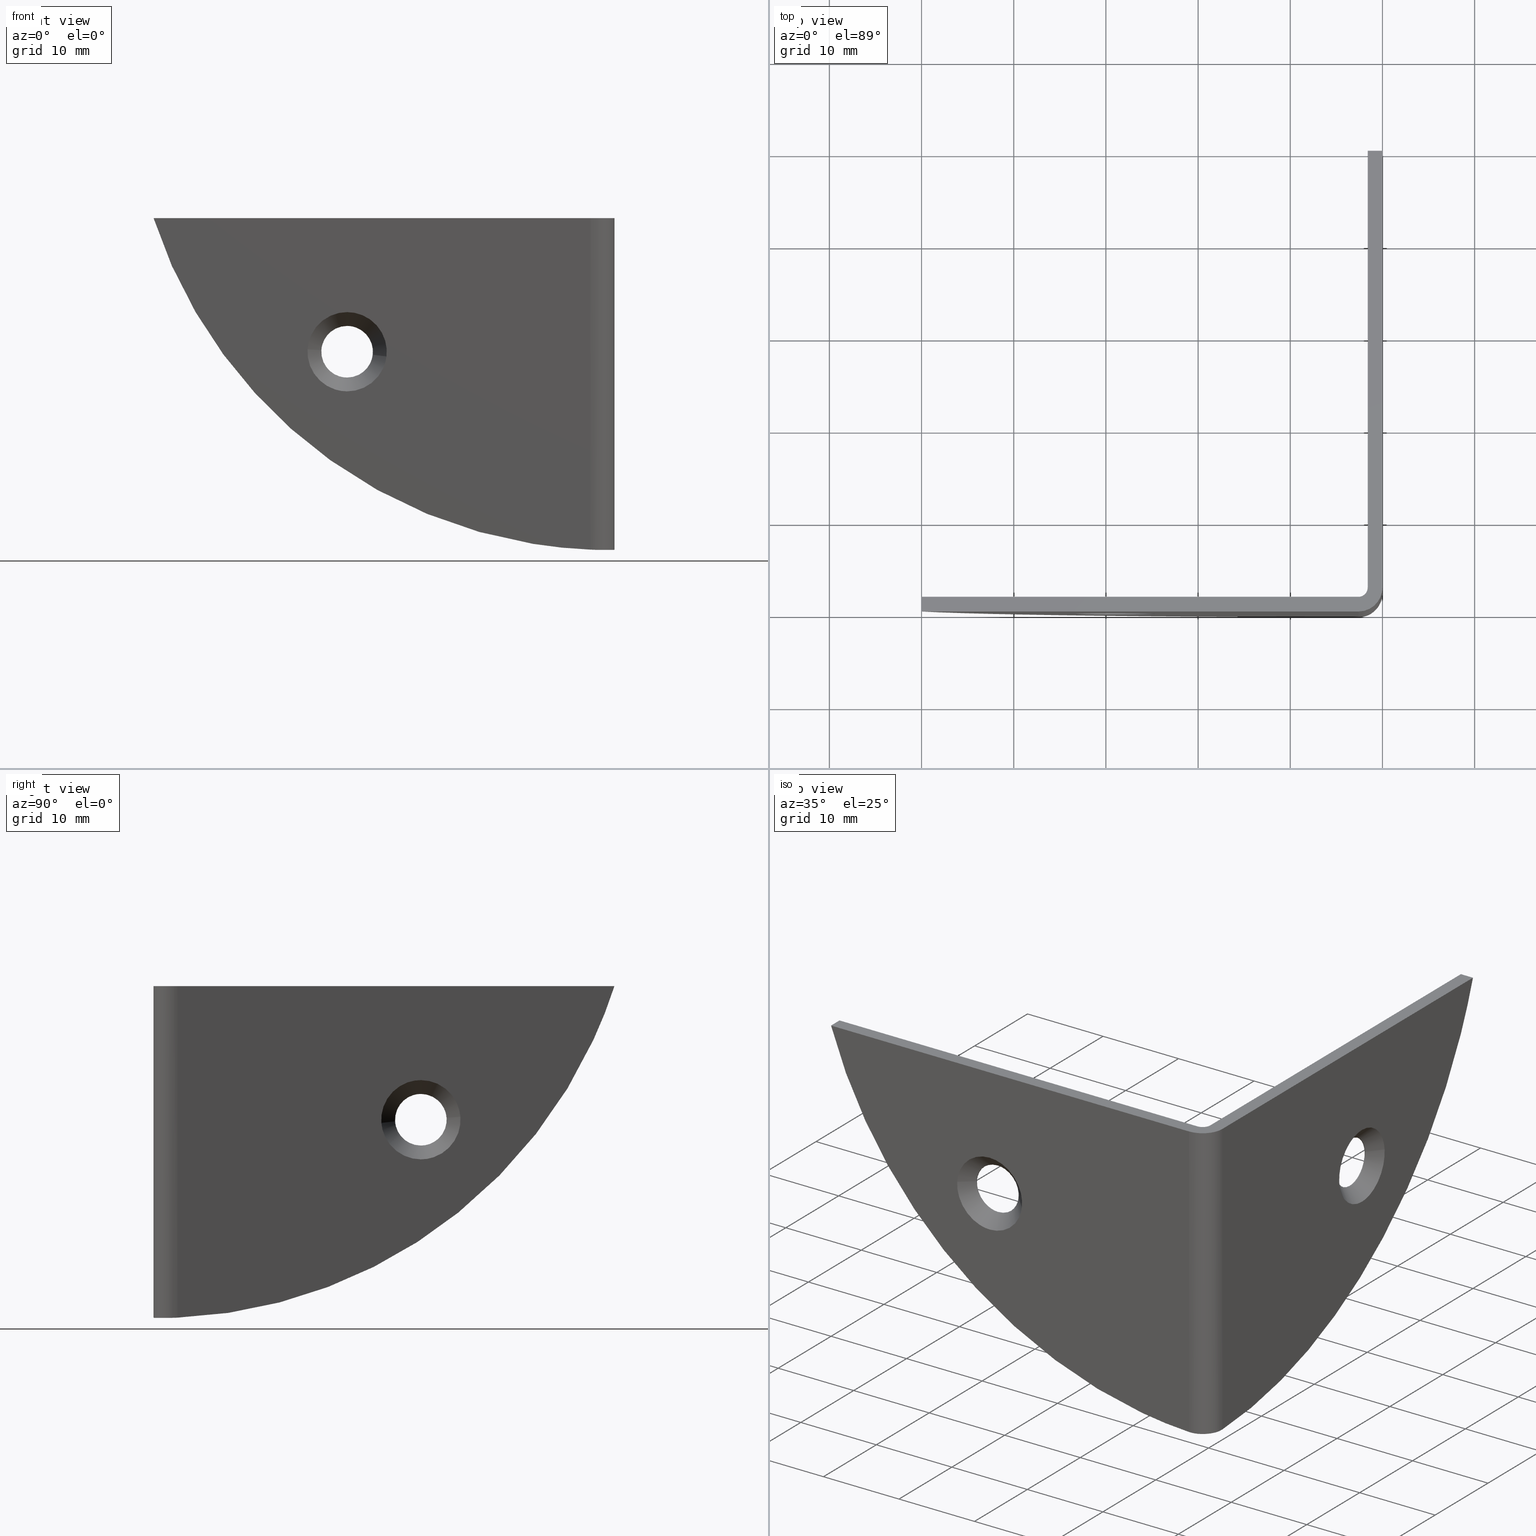
[diagram: canonical four-view strip — front | top / right | iso, engineering-drawing reading convention]
A machine part, canonical four-view strip (front | top / right | iso — engineering-drawing reading convention). The complete STEP part file that produces these views, byte-faithful:
ISO-10303-21;
HEADER;
/****************************************************************
 * Generated by software with PDE/Lib inside                    *
 * PDElib Version 4.4.1-0003, patched  Thursday August 19 11:58 *
 * International Technegroup Inc. (www.iti-oh.com)              *
 ****************************************************************/
FILE_DESCRIPTION((''),'2;1');
FILE_NAME('','2005-12-14T14:48:39',(''),(''),'','CADfix','');
FILE_SCHEMA(('AUTOMOTIVE_DESIGN'));
ENDSEC;
DATA;
#5=APPLICATION_CONTEXT('automotive design');
#6=APPLICATION_PROTOCOL_DEFINITION('Draft International Standard','automotive_design',1998,#5);
#7=PRODUCT_CONTEXT('None',#5,'mechanical');
#8=PRODUCT('angle','','None',(#7));
#9=PRODUCT_RELATED_PRODUCT_CATEGORY('part','description',(#8));
#10=PRODUCT_DEFINITION_FORMATION('None','None',#8);
#11=PRODUCT_DEFINITION_CONTEXT('part definition',#5,'design');
#12=PRODUCT_DEFINITION('None','None',#10,#11);
#18=(NAMED_UNIT(*)PLANE_ANGLE_UNIT()SI_UNIT($,.RADIAN.));
#19=DIMENSIONAL_EXPONENTS(0.0,0.0,0.0,0.0,0.0,0.0,0.0);
#20=PLANE_ANGLE_MEASURE_WITH_UNIT(PLANE_ANGLE_MEASURE(0.017453292500000),#18);
#24=(CONVERSION_BASED_UNIT('DEGREE',#20)NAMED_UNIT(#19)PLANE_ANGLE_UNIT());
#28=(NAMED_UNIT(*)SI_UNIT($,.STERADIAN.)SOLID_ANGLE_UNIT());
#32=(LENGTH_UNIT()NAMED_UNIT(*)SI_UNIT(.MILLI.,.METRE.));
#34=UNCERTAINTY_MEASURE_WITH_UNIT(LENGTH_MEASURE(0.001000000000000),#32,'DISTANCE_ACCURACY_VALUE','');
#36=(GEOMETRIC_REPRESENTATION_CONTEXT(3)GLOBAL_UNCERTAINTY_ASSIGNED_CONTEXT((#34))GLOBAL_UNIT_ASSIGNED_CONTEXT((#24,#28,#32))REPRESENTATION_CONTEXT('None','None'));
#37=AXIS2_PLACEMENT_3D('',#38,#39,#40);
#38=CARTESIAN_POINT('',(0.0,0.0,0.0));
#39=DIRECTION('',(0.0,0.0,1.0));
#40=DIRECTION('',(1.0,0.0,0.0));
#41=ADVANCED_BREP_SHAPE_REPRESENTATION('',(#37,#1109),#36);
#42=PRODUCT_DEFINITION_SHAPE('','',#12);
#43=SHAPE_DEFINITION_REPRESENTATION(#42,#41);
#44=CARTESIAN_POINT('',(-1.497500000000211,31.781713741619996,21.180518138726995));
#45=CARTESIAN_POINT('',(-1.497500000000210,31.513882427241029,18.848523312243021));
#46=CARTESIAN_POINT('',(-1.497500000000210,29.170935910697601,18.705222564418769));
#47=CARTESIAN_POINT('',(-1.497500000000209,26.376158475116366,18.534286653721178));
#48=CARTESIAN_POINT('',(-1.497500000000210,26.205222564418769,21.329064089302399));
#49=CARTESIAN_POINT('',(-1.602562500000200,31.781713741619996,21.180518138726995));
#50=CARTESIAN_POINT('',(-1.602562500000200,31.513882427241029,18.848523312243021));
#51=CARTESIAN_POINT('',(-1.602562500000200,29.170935910697601,18.705222564418769));
#52=CARTESIAN_POINT('',(-1.602562500000200,26.376158475116366,18.534286653721178));
#53=CARTESIAN_POINT('',(-1.602562500000200,26.205222564418769,21.329064089302399));
#61=(BOUNDED_SURFACE()B_SPLINE_SURFACE(2,1,((#44,#49),(#45,#50),(#46,#51),(#47,#52),(#48,#53)),.UNSPECIFIED.,.F.,.F.,.U.)B_SPLINE_SURFACE_WITH_KNOTS((3,2,3),(2,2),(0.0,4.082488870749228,8.721680769327897),(0.0,0.105062499999990),.UNSPECIFIED.)GEOMETRIC_REPRESENTATION_ITEM()RATIONAL_B_SPLINE_SURFACE(((0.938140952186599,0.938140952186599),(0.742253967444162,0.742253967444162),(1.0,1.0),(0.707106781186548,0.707106781186548),(1.0,1.0)))REPRESENTATION_ITEM('')SURFACE());
#62=CARTESIAN_POINT('',(-1.500000000000210,31.781713782970819,21.180518498767050));
#63=VERTEX_POINT('',#62);
#64=CARTESIAN_POINT('',(-1.500000000000210,29.0,18.699999999999999));
#65=VERTEX_POINT('',#64);
#66=CARTESIAN_POINT('',(-1.500000000000210,31.781713782970815,21.180518498767047));
#67=CARTESIAN_POINT('',(-1.500000000000210,31.496825066594930,18.699999999999999));
#68=CARTESIAN_POINT('',(-1.500000000000210,29.0,18.699999999999999));
#76=(BOUNDED_CURVE()B_SPLINE_CURVE(2,(#66,#67,#68),.UNSPECIFIED.,.F.,.U.)B_SPLINE_CURVE_WITH_KNOTS((3,3),(0.269767712067815,0.500000000000000),.UNSPECIFIED.)CURVE()GEOMETRIC_REPRESENTATION_ITEM()RATIONAL_B_SPLINE_CURVE((0.957343822877729,0.730266096451027,1.0))REPRESENTATION_ITEM(''));
#77=EDGE_CURVE('',#63,#65,#76,.T.);
#78=ORIENTED_EDGE('',*,*,#77,.F.);
#79=CARTESIAN_POINT('',(-1.600000000000200,31.781713738033840,21.180518107502440));
#80=VERTEX_POINT('',#79);
#81=CARTESIAN_POINT('',(-1.500000000000210,31.781713782970819,21.180518498767050));
#82=CARTESIAN_POINT('',(-1.600000000000200,31.781713738033840,21.180518107502440));
#83=QUASI_UNIFORM_CURVE('',1,(#81,#82),.UNSPECIFIED.,.F.,.U.);
#84=EDGE_CURVE('',#63,#80,#83,.T.);
#85=ORIENTED_EDGE('',*,*,#84,.T.);
#86=CARTESIAN_POINT('',(-1.600000000000200,29.0,18.699999999999999));
#87=VERTEX_POINT('',#86);
#88=CARTESIAN_POINT('',(-1.600000000000200,31.781713738033837,21.180518107502444));
#89=CARTESIAN_POINT('',(-1.600000000000201,31.496824359591098,18.699999999999996));
#90=CARTESIAN_POINT('',(-1.600000000000200,29.0,18.699999999999999));
#98=(BOUNDED_CURVE()B_SPLINE_CURVE(2,(#88,#89,#90),.UNSPECIFIED.,.F.,.U.)B_SPLINE_CURVE_WITH_KNOTS((3,3),(0.269767759675936,0.500000000000000),.UNSPECIFIED.)CURVE()GEOMETRIC_REPRESENTATION_ITEM()RATIONAL_B_SPLINE_CURVE((0.957343728966127,0.730266152227410,1.0))REPRESENTATION_ITEM(''));
#99=EDGE_CURVE('',#80,#87,#98,.T.);
#100=ORIENTED_EDGE('',*,*,#99,.T.);
#101=CARTESIAN_POINT('',(-1.600000000000200,26.205222564419660,21.329064089287890));
#102=VERTEX_POINT('',#101);
#103=CARTESIAN_POINT('',(-1.600000000000200,29.0,18.699999999999999));
#104=CARTESIAN_POINT('',(-1.600000000000200,26.366023012691436,18.699999999999996));
#105=CARTESIAN_POINT('',(-1.600000000000200,26.205222564419667,21.329064089287893));
#113=(BOUNDED_CURVE()B_SPLINE_CURVE(2,(#103,#104,#105),.UNSPECIFIED.,.F.,.U.)B_SPLINE_CURVE_WITH_KNOTS((3,3),(0.500000000000000,0.739332962240177),.UNSPECIFIED.)CURVE()GEOMETRIC_REPRESENTATION_ITEM()RATIONAL_B_SPLINE_CURVE((1.0,0.719603993285264,0.976072041669364))REPRESENTATION_ITEM(''));
#114=EDGE_CURVE('',#87,#102,#113,.T.);
#115=ORIENTED_EDGE('',*,*,#114,.T.);
#116=CARTESIAN_POINT('',(-1.500000000000062,26.205222549901880,21.329064326651871));
#117=VERTEX_POINT('',#116);
#118=CARTESIAN_POINT('',(-1.500000000000062,26.205222549901880,21.329064326651871));
#119=CARTESIAN_POINT('',(-1.600000000000200,26.205222564419660,21.329064089287890));
#120=QUASI_UNIFORM_CURVE('',1,(#118,#119),.UNSPECIFIED.,.F.,.U.);
#121=EDGE_CURVE('',#117,#102,#120,.T.);
#122=ORIENTED_EDGE('',*,*,#121,.F.);
#123=CARTESIAN_POINT('',(-1.500000000000210,29.0,18.699999999999999));
#124=CARTESIAN_POINT('',(-1.500000000000210,26.366022788552709,18.699999999999996));
#125=CARTESIAN_POINT('',(-1.500000000000062,26.205222549901876,21.329064326651867));
#133=(BOUNDED_CURVE()B_SPLINE_CURVE(2,(#123,#124,#125),.UNSPECIFIED.,.F.,.U.)B_SPLINE_CURVE_WITH_KNOTS((3,3),(0.500000000000000,0.739332976895690),.UNSPECIFIED.)CURVE()GEOMETRIC_REPRESENTATION_ITEM()RATIONAL_B_SPLINE_CURVE((1.0,0.719603976115263,0.976072073078918))REPRESENTATION_ITEM(''));
#134=EDGE_CURVE('',#65,#117,#133,.T.);
#135=ORIENTED_EDGE('',*,*,#134,.F.);
#136=EDGE_LOOP('',(#78,#85,#100,#115,#122,#135));
#137=FACE_OUTER_BOUND('',#136,.T.);
#138=ADVANCED_FACE('',(#137),#61,.F.);
#139=CARTESIAN_POINT('',(-1.497500000000210,26.205222564418769,21.329064089302399));
#140=CARTESIAN_POINT('',(-1.497500000000209,26.034286653721168,24.123841524883630));
#141=CARTESIAN_POINT('',(-1.497500000000210,28.829064089302399,24.294777435581231));
#142=CARTESIAN_POINT('',(-1.497500000000209,31.623841524883620,24.465713346278829));
#143=CARTESIAN_POINT('',(-1.497500000000210,31.794777435581231,21.670935910697601));
#144=CARTESIAN_POINT('',(-1.497500000000210,31.809810187505381,21.425152589329667));
#145=CARTESIAN_POINT('',(-1.497500000000211,31.781713741619996,21.180518138726995));
#146=CARTESIAN_POINT('',(-1.602562500000200,26.205222564418769,21.329064089302399));
#147=CARTESIAN_POINT('',(-1.602562500000200,26.034286653721168,24.123841524883630));
#148=CARTESIAN_POINT('',(-1.602562500000200,28.829064089302399,24.294777435581231));
#149=CARTESIAN_POINT('',(-1.602562500000200,31.623841524883620,24.465713346278829));
#150=CARTESIAN_POINT('',(-1.602562500000200,31.794777435581231,21.670935910697601));
#151=CARTESIAN_POINT('',(-1.602562500000200,31.809810187505381,21.425152589329667));
#152=CARTESIAN_POINT('',(-1.602562500000200,31.781713741619996,21.180518138726995));
#160=(BOUNDED_SURFACE()B_SPLINE_SURFACE(2,1,((#139,#146),(#140,#147),(#141,#148),(#142,#149),(#143,#150),(#144,#151),(#145,#152)),.UNSPECIFIED.,.F.,.F.,.U.)B_SPLINE_SURFACE_WITH_KNOTS((3,2,2,3),(2,2),(0.0,4.639191898578665,9.278383797157330,9.835086824986771),(0.0,0.105062499999991),.UNSPECIFIED.)GEOMETRIC_REPRESENTATION_ITEM()RATIONAL_B_SPLINE_SURFACE(((1.0,1.0),(0.707106781186548,0.707106781186548),(1.0,1.0),(0.707106781186548,0.707106781186548),(1.0,1.0),(0.964852813742386,0.964852813742386),(0.938140952186599,0.938140952186599)))REPRESENTATION_ITEM('')SURFACE());
#161=CARTESIAN_POINT('',(-1.499999999975015,31.791368534462869,21.719685468230580));
#162=VERTEX_POINT('',#161);
#163=CARTESIAN_POINT('',(-1.499999999975015,31.791368534462869,21.719685468230576));
#164=CARTESIAN_POINT('',(-1.500000000000210,31.800000000000001,21.610012299812997));
#165=CARTESIAN_POINT('',(-1.500000000000210,31.800000000000001,21.500000000000000));
#166=CARTESIAN_POINT('',(-1.500000000000210,31.799999999999997,21.339736105523318));
#167=CARTESIAN_POINT('',(-1.500000000000209,31.781713782970819,21.180518498767047));
#175=(BOUNDED_CURVE()B_SPLINE_CURVE(2,(#163,#164,#165,#166,#167),.UNSPECIFIED.,.F.,.U.)B_SPLINE_CURVE_WITH_KNOTS((3,2,3),(0.236331300609353,0.250000000000000,0.269767712067815),.UNSPECIFIED.)CURVE()GEOMETRIC_REPRESENTATION_ITEM()RATIONAL_B_SPLINE_CURVE((0.969723356122951,0.983986122553919,1.0,0.976840684735521,0.957343822877730))REPRESENTATION_ITEM(''));
#176=EDGE_CURVE('',#162,#63,#175,.T.);
#177=ORIENTED_EDGE('',*,*,#176,.F.);
#178=CARTESIAN_POINT('',(-1.500000000000210,29.0,24.300000000000001));
#179=VERTEX_POINT('',#178);
#180=CARTESIAN_POINT('',(-1.500000000000210,29.0,24.300000000000001));
#181=CARTESIAN_POINT('',(-1.500000000000209,31.588293376288359,24.300000000000001));
#182=CARTESIAN_POINT('',(-1.499999999975015,31.791368534462869,21.719685468230576));
#190=(BOUNDED_CURVE()B_SPLINE_CURVE(2,(#180,#181,#182),.UNSPECIFIED.,.F.,.U.)B_SPLINE_CURVE_WITH_KNOTS((3,3),(0.0,0.236331300609353),.UNSPECIFIED.)CURVE()GEOMETRIC_REPRESENTATION_ITEM()RATIONAL_B_SPLINE_CURVE((1.0,0.723120658632628,0.969723356122951))REPRESENTATION_ITEM(''));
#191=EDGE_CURVE('',#179,#162,#190,.T.);
#192=ORIENTED_EDGE('',*,*,#191,.F.);
#193=CARTESIAN_POINT('',(-1.500000000000062,26.205222549901880,21.329064326651871));
#194=CARTESIAN_POINT('',(-1.500000000000210,26.200000000000010,21.414452381771433));
#195=CARTESIAN_POINT('',(-1.500000000000210,26.199999999999999,21.500000000000000));
#196=CARTESIAN_POINT('',(-1.500000000000211,26.199999999999996,24.299999999999994));
#197=CARTESIAN_POINT('',(-1.500000000000210,29.0,24.300000000000001));
#205=(BOUNDED_CURVE()B_SPLINE_CURVE(2,(#193,#194,#195,#196,#197),.UNSPECIFIED.,.F.,.U.)B_SPLINE_CURVE_WITH_KNOTS((3,2,3),(0.739332976895689,0.750000000000000,1.0),.UNSPECIFIED.)CURVE()GEOMETRIC_REPRESENTATION_ITEM()RATIONAL_B_SPLINE_CURVE((0.976072073078918,0.987502805071284,1.0,0.707106781186547,1.0))REPRESENTATION_ITEM(''));
#206=EDGE_CURVE('',#117,#179,#205,.T.);
#207=ORIENTED_EDGE('',*,*,#206,.F.);
#208=ORIENTED_EDGE('',*,*,#121,.T.);
#209=CARTESIAN_POINT('',(-1.600000000000200,29.0,24.300000000000001));
#210=VERTEX_POINT('',#209);
#211=CARTESIAN_POINT('',(-1.600000000000200,26.205222564419664,21.329064089287893));
#212=CARTESIAN_POINT('',(-1.600000000000200,26.200000000000003,21.414452262749407));
#213=CARTESIAN_POINT('',(-1.600000000000200,26.199999999999999,21.500000000000000));
#214=CARTESIAN_POINT('',(-1.600000000000201,26.199999999999996,24.299999999999994));
#215=CARTESIAN_POINT('',(-1.600000000000200,29.0,24.300000000000001));
#223=(BOUNDED_CURVE()B_SPLINE_CURVE(2,(#211,#212,#213,#214,#215),.UNSPECIFIED.,.F.,.U.)B_SPLINE_CURVE_WITH_KNOTS((3,2,3),(0.739332962240177,0.750000000000000,1.0),.UNSPECIFIED.)CURVE()GEOMETRIC_REPRESENTATION_ITEM()RATIONAL_B_SPLINE_CURVE((0.976072041669362,0.987502787901283,1.0,0.707106781186547,1.0))REPRESENTATION_ITEM(''));
#224=EDGE_CURVE('',#102,#210,#223,.T.);
#225=ORIENTED_EDGE('',*,*,#224,.T.);
#226=CARTESIAN_POINT('',(-1.600000000000200,29.0,24.300000000000001));
#227=CARTESIAN_POINT('',(-1.600000000000201,31.800000000000001,24.299999999999994));
#228=CARTESIAN_POINT('',(-1.600000000000200,31.800000000000001,21.500000000000000));
#229=CARTESIAN_POINT('',(-1.600000000000200,31.800000000000001,21.339735710396400));
#230=CARTESIAN_POINT('',(-1.600000000000200,31.781713738033840,21.180518107502444));
#238=(BOUNDED_CURVE()B_SPLINE_CURVE(2,(#226,#227,#228,#229,#230),.UNSPECIFIED.,.F.,.U.)B_SPLINE_CURVE_WITH_KNOTS((3,2,3),(0.0,0.250000000000000,0.269767759675936),.UNSPECIFIED.)CURVE()GEOMETRIC_REPRESENTATION_ITEM()RATIONAL_B_SPLINE_CURVE((1.0,0.707106781186547,1.0,0.976840628959137,0.957343728966127))REPRESENTATION_ITEM(''));
#239=EDGE_CURVE('',#210,#80,#238,.T.);
#240=ORIENTED_EDGE('',*,*,#239,.T.);
#241=ORIENTED_EDGE('',*,*,#84,.F.);
#242=EDGE_LOOP('',(#177,#192,#207,#208,#225,#240,#241));
#243=FACE_OUTER_BOUND('',#242,.T.);
#244=ADVANCED_FACE('',(#243),#160,.F.);
#245=CARTESIAN_POINT('',(-1.537500000000215,31.753984134437761,21.716743251948170));
#246=CARTESIAN_POINT('',(-1.537500000000215,31.537240882489591,24.470727386385924));
#247=CARTESIAN_POINT('',(-1.537500000000215,28.783256748051830,24.253984134437761));
#248=CARTESIAN_POINT('',(-1.537500000000215,26.029272613614072,24.037240882489584));
#249=CARTESIAN_POINT('',(-1.537500000000215,26.246015865562239,21.283256748051830));
#250=CARTESIAN_POINT('',(0.038437500000001,33.325063545068033,21.840389883121791));
#251=CARTESIAN_POINT('',(0.038437500000001,32.984673661946225,26.165453428189817));
#252=CARTESIAN_POINT('',(0.038437500000001,28.659610116878209,25.825063545068030));
#253=CARTESIAN_POINT('',(0.038437500000001,24.334546571810190,25.484673661946236));
#254=CARTESIAN_POINT('',(0.038437500000001,24.674936454931970,21.159610116878209));
#262=(BOUNDED_SURFACE()B_SPLINE_SURFACE(2,1,((#245,#250),(#246,#251),(#247,#252),(#248,#253),(#249,#254)),.UNSPECIFIED.,.F.,.F.,.U.)B_SPLINE_SURFACE_WITH_KNOTS((3,2,3),(2,2),(0.0,7.188158608032445,14.376317216064891),(0.0,2.228712185952658),.UNSPECIFIED.)GEOMETRIC_REPRESENTATION_ITEM()RATIONAL_B_SPLINE_SURFACE(((1.0,1.0),(0.707106781186548,0.707106781186548),(1.0,1.0),(0.707106781186548,0.707106781186548),(1.0,1.0)))REPRESENTATION_ITEM('')SURFACE());
#263=ORIENTED_EDGE('',*,*,#191,.T.);
#264=CARTESIAN_POINT('',(0.000000013452583,33.286744546128453,21.837374142358239));
#265=VERTEX_POINT('',#264);
#266=CARTESIAN_POINT('',(-1.499999999975015,31.791368534462869,21.719685468230580));
#267=CARTESIAN_POINT('',(0.000000013452583,33.286744546128453,21.837374142358239));
#268=QUASI_UNIFORM_CURVE('',1,(#266,#267),.UNSPECIFIED.,.F.,.U.);
#269=EDGE_CURVE('',#162,#265,#268,.T.);
#270=ORIENTED_EDGE('',*,*,#269,.T.);
#271=CARTESIAN_POINT('',(-4.537167E-015,29.0,25.800000000000200));
#272=VERTEX_POINT('',#271);
#273=CARTESIAN_POINT('',(-4.537167E-015,29.0,25.800000000000200));
#274=CARTESIAN_POINT('',(-4.537167E-015,32.974879058931791,25.800000000000196));
#275=CARTESIAN_POINT('',(0.000000013452583,33.286744546128453,21.837374142358243));
#283=(BOUNDED_CURVE()B_SPLINE_CURVE(2,(#273,#274,#275),.UNSPECIFIED.,.F.,.U.)B_SPLINE_CURVE_WITH_KNOTS((3,3),(0.0,0.236331298259553),.UNSPECIFIED.)CURVE()GEOMETRIC_REPRESENTATION_ITEM()RATIONAL_B_SPLINE_CURVE((1.0,0.723120661385589,0.969723351219100))REPRESENTATION_ITEM(''));
#284=EDGE_CURVE('',#272,#265,#283,.T.);
#285=ORIENTED_EDGE('',*,*,#284,.F.);
#286=CARTESIAN_POINT('',(0.000000013452583,24.713255453871550,21.162625857641761));
#287=VERTEX_POINT('',#286);
#288=CARTESIAN_POINT('',(0.000000013452583,24.713255453871550,21.162625857641761));
#289=CARTESIAN_POINT('',(-4.537167E-015,24.699999999999790,21.331052510056306));
#290=CARTESIAN_POINT('',(-4.537167E-015,24.699999999999800,21.500000000000000));
#291=CARTESIAN_POINT('',(-4.537167E-015,24.699999999999793,25.800000000000203));
#292=CARTESIAN_POINT('',(-4.537167E-015,29.0,25.800000000000200));
#300=(BOUNDED_CURVE()B_SPLINE_CURVE(2,(#288,#289,#290,#291,#292),.UNSPECIFIED.,.F.,.U.)B_SPLINE_CURVE_WITH_KNOTS((3,2,3),(0.736331298259553,0.750000000000000,1.0),.UNSPECIFIED.)CURVE()GEOMETRIC_REPRESENTATION_ITEM()RATIONAL_B_SPLINE_CURVE((0.969723351219100,0.983986119800958,1.0,0.707106781186548,1.0))REPRESENTATION_ITEM(''));
#301=EDGE_CURVE('',#287,#272,#300,.T.);
#302=ORIENTED_EDGE('',*,*,#301,.F.);
#303=CARTESIAN_POINT('',(-1.500000000000062,26.205222549901880,21.329064326651871));
#304=CARTESIAN_POINT('',(0.000000013452583,24.713255453871550,21.162625857641761));
#305=QUASI_UNIFORM_CURVE('',1,(#303,#304),.UNSPECIFIED.,.F.,.U.);
#306=EDGE_CURVE('',#117,#287,#305,.T.);
#307=ORIENTED_EDGE('',*,*,#306,.F.);
#308=ORIENTED_EDGE('',*,*,#206,.T.);
#309=EDGE_LOOP('',(#263,#270,#285,#302,#307,#308));
#310=FACE_OUTER_BOUND('',#309,.T.);
#311=ADVANCED_FACE('',(#310),#262,.F.);
#312=CARTESIAN_POINT('',(-1.537500000000214,26.239237694199666,21.369381581121480));
#313=CARTESIAN_POINT('',(-1.537500000000216,26.242604686314937,21.326599889959912));
#314=CARTESIAN_POINT('',(-1.537500000000215,26.462759117510423,18.529272613614065));
#315=CARTESIAN_POINT('',(-1.537500000000215,29.216743251948170,18.746015865562239));
#316=CARTESIAN_POINT('',(-1.537500000000215,31.970727386385931,18.962759117510419));
#317=CARTESIAN_POINT('',(-1.537500000000216,31.752446601113089,21.736279465160166));
#318=CARTESIAN_POINT('',(-1.537500000000215,31.750918076933118,21.755701206334958));
#319=CARTESIAN_POINT('',(0.038437500000001,24.664291505494575,21.294867023835920));
#320=CARTESIAN_POINT('',(0.038437500000001,24.669579282817679,21.227679442569386));
#321=CARTESIAN_POINT('',(0.038437500000001,25.015326338053772,16.834546571810186));
#322=CARTESIAN_POINT('',(0.038437500000001,29.340389883121791,17.174936454931970));
#323=CARTESIAN_POINT('',(0.038437500000001,33.665453428189821,17.515326338053768));
#324=CARTESIAN_POINT('',(0.038437500000001,33.322648887246025,21.871071019775879));
#325=CARTESIAN_POINT('',(0.038437500000001,33.320248378061585,21.901572380944380));
#333=(BOUNDED_SURFACE()B_SPLINE_SURFACE(2,1,((#312,#319),(#313,#320),(#314,#321),(#315,#322),(#316,#323),(#317,#324),(#318,#325)),.UNSPECIFIED.,.F.,.F.,.U.)B_SPLINE_SURFACE_WITH_KNOTS((3,1,2,1,3),(2,2),(0.0,0.161039366774669,7.349197974807115,14.537356582839561,14.609681773718011),(0.0,2.229257033289586),.UNSPECIFIED.)GEOMETRIC_REPRESENTATION_ITEM()RATIONAL_B_SPLINE_SURFACE(((1.013123622074117,1.013123622074117),(1.006561811037058,1.006561811037058),(0.707106781186548,0.707106781186548),(1.0,1.0),(0.707106781186548,0.707106781186548),(1.002947007587453,1.002947007587453),(1.005894015174906,1.005894015174906)))REPRESENTATION_ITEM('')SURFACE());
#334=ORIENTED_EDGE('',*,*,#176,.T.);
#335=ORIENTED_EDGE('',*,*,#77,.T.);
#336=ORIENTED_EDGE('',*,*,#134,.T.);
#337=ORIENTED_EDGE('',*,*,#306,.T.);
#338=CARTESIAN_POINT('',(-4.537167E-015,29.0,17.199999999999790));
#339=VERTEX_POINT('',#338);
#340=CARTESIAN_POINT('',(-4.537167E-015,29.0,17.199999999999790));
#341=CARTESIAN_POINT('',(-4.537167E-015,25.025120941068213,17.199999999999797));
#342=CARTESIAN_POINT('',(0.000000013452583,24.713255453871550,21.162625857641764));
#350=(BOUNDED_CURVE()B_SPLINE_CURVE(2,(#340,#341,#342),.UNSPECIFIED.,.F.,.U.)B_SPLINE_CURVE_WITH_KNOTS((3,3),(0.500000000000000,0.736331298259553),.UNSPECIFIED.)CURVE()GEOMETRIC_REPRESENTATION_ITEM()RATIONAL_B_SPLINE_CURVE((1.0,0.723120661385589,0.969723351219100))REPRESENTATION_ITEM(''));
#351=EDGE_CURVE('',#339,#287,#350,.T.);
#352=ORIENTED_EDGE('',*,*,#351,.F.);
#353=CARTESIAN_POINT('',(0.000000013452583,33.286744546128453,21.837374142358232));
#354=CARTESIAN_POINT('',(-4.537167E-015,33.300000000000203,21.668947489943697));
#355=CARTESIAN_POINT('',(-4.537167E-015,33.300000000000203,21.500000000000000));
#356=CARTESIAN_POINT('',(-4.537167E-015,33.300000000000210,17.199999999999793));
#357=CARTESIAN_POINT('',(-4.537167E-015,29.0,17.199999999999790));
#365=(BOUNDED_CURVE()B_SPLINE_CURVE(2,(#353,#354,#355,#356,#357),.UNSPECIFIED.,.F.,.U.)B_SPLINE_CURVE_WITH_KNOTS((3,2,3),(0.236331298259553,0.250000000000000,0.500000000000000),.UNSPECIFIED.)CURVE()GEOMETRIC_REPRESENTATION_ITEM()RATIONAL_B_SPLINE_CURVE((0.969723351219100,0.983986119800958,1.0,0.707106781186548,1.0))REPRESENTATION_ITEM(''));
#366=EDGE_CURVE('',#265,#339,#365,.T.);
#367=ORIENTED_EDGE('',*,*,#366,.F.);
#368=ORIENTED_EDGE('',*,*,#269,.F.);
#369=EDGE_LOOP('',(#334,#335,#336,#337,#352,#367,#368));
#370=FACE_OUTER_BOUND('',#369,.T.);
#371=ADVANCED_FACE('',(#370),#333,.F.);
#372=CARTESIAN_POINT('',(-28.015469671703595,1.602500000000001,24.121202020574639));
#373=CARTESIAN_POINT('',(-28.409229535196861,1.602500000000001,24.269099254222425));
#374=CARTESIAN_POINT('',(-28.829064089302399,1.602500000000000,24.294777435581231));
#375=CARTESIAN_POINT('',(-31.623841524883620,1.602500000000001,24.465713346278829));
#376=CARTESIAN_POINT('',(-31.794777435581231,1.602500000000000,21.670935910697601));
#377=CARTESIAN_POINT('',(-28.015469671703595,1.497437500000000,24.121202020574639));
#378=CARTESIAN_POINT('',(-28.409229535196861,1.497437500000000,24.269099254222425));
#379=CARTESIAN_POINT('',(-28.829064089302399,1.497437500000000,24.294777435581231));
#380=CARTESIAN_POINT('',(-31.623841524883620,1.497437500000000,24.465713346278829));
#381=CARTESIAN_POINT('',(-31.794777435581231,1.497437500000000,21.670935910697601));
#389=(BOUNDED_SURFACE()B_SPLINE_SURFACE(2,1,((#372,#377),(#373,#378),(#374,#379),(#375,#380),(#376,#381)),.UNSPECIFIED.,.F.,.F.,.U.)B_SPLINE_SURFACE_WITH_KNOTS((3,2,3),(2,2),(0.0,0.927838379715733,5.567030278294398),(0.0,0.105062500000001),.UNSPECIFIED.)GEOMETRIC_REPRESENTATION_ITEM()RATIONAL_B_SPLINE_SURFACE(((0.906274169979695,0.906274169979695),(0.941421356237309,0.941421356237309),(1.0,1.0),(0.707106781186548,0.707106781186548),(1.0,1.0)))REPRESENTATION_ITEM('')SURFACE());
#390=CARTESIAN_POINT('',(-28.015469671701471,1.500000000000000,24.121202020573840));
#391=VERTEX_POINT('',#390);
#392=CARTESIAN_POINT('',(-29.0,1.500000000000000,24.300000000000001));
#393=VERTEX_POINT('',#392);
#394=CARTESIAN_POINT('',(-28.015469671701474,1.500000000000000,24.121202020573843));
#395=CARTESIAN_POINT('',(-28.491499319010725,1.500000000000000,24.300000000000008));
#396=CARTESIAN_POINT('',(-29.0,1.500000000000000,24.300000000000001));
#404=(BOUNDED_CURVE()B_SPLINE_CURVE(2,(#394,#395,#396),.UNSPECIFIED.,.F.,.U.)B_SPLINE_CURVE_WITH_KNOTS((3,3),(0.440284170898653,0.500000000000000),.UNSPECIFIED.)CURVE()GEOMETRIC_REPRESENTATION_ITEM()RATIONAL_B_SPLINE_CURVE((0.893499554635451,0.930038554401569,1.0))REPRESENTATION_ITEM(''));
#405=EDGE_CURVE('',#391,#393,#404,.T.);
#406=ORIENTED_EDGE('',*,*,#405,.T.);
#407=CARTESIAN_POINT('',(-31.794777435590721,1.499999999964779,21.670935910830810));
#408=VERTEX_POINT('',#407);
#409=CARTESIAN_POINT('',(-29.0,1.500000000000000,24.300000000000001));
#410=CARTESIAN_POINT('',(-31.633976986836903,1.500000000000000,24.299999999999994));
#411=CARTESIAN_POINT('',(-31.794777435590728,1.499999999964779,21.670935910830803));
#419=(BOUNDED_CURVE()B_SPLINE_CURVE(2,(#409,#410,#411),.UNSPECIFIED.,.F.,.U.)B_SPLINE_CURVE_WITH_KNOTS((3,3),(0.500000000000000,0.739332962209338),.UNSPECIFIED.)CURVE()GEOMETRIC_REPRESENTATION_ITEM()RATIONAL_B_SPLINE_CURVE((1.0,0.719603993321395,0.976072041603268))REPRESENTATION_ITEM(''));
#420=EDGE_CURVE('',#393,#408,#419,.T.);
#421=ORIENTED_EDGE('',*,*,#420,.T.);
#422=CARTESIAN_POINT('',(-31.794777435576389,1.600000000000000,21.670935910776691));
#423=VERTEX_POINT('',#422);
#424=CARTESIAN_POINT('',(-31.794777435576389,1.600000000000000,21.670935910776691));
#425=CARTESIAN_POINT('',(-31.794777435590721,1.499999999964779,21.670935910830810));
#426=QUASI_UNIFORM_CURVE('',1,(#424,#425),.UNSPECIFIED.,.F.,.U.);
#427=EDGE_CURVE('',#423,#408,#426,.T.);
#428=ORIENTED_EDGE('',*,*,#427,.F.);
#429=CARTESIAN_POINT('',(-29.0,1.600000000000000,24.300000000000001));
#430=VERTEX_POINT('',#429);
#431=CARTESIAN_POINT('',(-29.0,1.600000000000000,24.300000000000001));
#432=CARTESIAN_POINT('',(-31.633976987186585,1.600000000000000,24.300000000000008));
#433=CARTESIAN_POINT('',(-31.794777435576385,1.600000000000000,21.670935910776699));
#441=(BOUNDED_CURVE()B_SPLINE_CURVE(2,(#431,#432,#433),.UNSPECIFIED.,.F.,.U.)B_SPLINE_CURVE_WITH_KNOTS((3,3),(0.500000000000000,0.739332962232202),.UNSPECIFIED.)CURVE()GEOMETRIC_REPRESENTATION_ITEM()RATIONAL_B_SPLINE_CURVE((1.0,0.719603993294608,0.976072041652270))REPRESENTATION_ITEM(''));
#442=EDGE_CURVE('',#430,#423,#441,.T.);
#443=ORIENTED_EDGE('',*,*,#442,.F.);
#444=CARTESIAN_POINT('',(-28.015473747514989,1.600000000000000,24.121203551452819));
#445=VERTEX_POINT('',#444);
#446=CARTESIAN_POINT('',(-28.015473747514989,1.600000000000000,24.121203551452815));
#447=CARTESIAN_POINT('',(-28.491501567724566,1.600000000000001,24.299999999999994));
#448=CARTESIAN_POINT('',(-29.0,1.600000000000000,24.300000000000001));
#456=(BOUNDED_CURVE()B_SPLINE_CURVE(2,(#446,#447,#448),.UNSPECIFIED.,.F.,.U.)B_SPLINE_CURVE_WITH_KNOTS((3,3),(0.440284416501393,0.500000000000000),.UNSPECIFIED.)CURVE()GEOMETRIC_REPRESENTATION_ITEM()RATIONAL_B_SPLINE_CURVE((0.893499855195470,0.930038842143078,1.0))REPRESENTATION_ITEM(''));
#457=EDGE_CURVE('',#445,#430,#456,.T.);
#458=ORIENTED_EDGE('',*,*,#457,.F.);
#459=CARTESIAN_POINT('',(-28.015473747514989,1.600000000000000,24.121203551452819));
#460=CARTESIAN_POINT('',(-28.015469671701471,1.500000000000000,24.121202020573840));
#461=QUASI_UNIFORM_CURVE('',1,(#459,#460),.UNSPECIFIED.,.F.,.U.);
#462=EDGE_CURVE('',#445,#391,#461,.T.);
#463=ORIENTED_EDGE('',*,*,#462,.T.);
#464=EDGE_LOOP('',(#406,#421,#428,#443,#458,#463));
#465=FACE_OUTER_BOUND('',#464,.T.);
#466=ADVANCED_FACE('',(#465),#389,.F.);
#467=CARTESIAN_POINT('',(-31.794777435581231,1.602500000000000,21.670935910697601));
#468=CARTESIAN_POINT('',(-31.965713346278829,1.602500000000001,18.876158475116373));
#469=CARTESIAN_POINT('',(-29.170935910697601,1.602500000000000,18.705222564418769));
#470=CARTESIAN_POINT('',(-26.376158475116366,1.602500000000001,18.534286653721178));
#471=CARTESIAN_POINT('',(-26.205222564418769,1.602500000000000,21.329064089302399));
#472=CARTESIAN_POINT('',(-26.078935775965839,1.602500000000000,23.393834829048583));
#473=CARTESIAN_POINT('',(-28.015469671703595,1.602500000000001,24.121202020574639));
#474=CARTESIAN_POINT('',(-31.794777435581231,1.497437500000000,21.670935910697601));
#475=CARTESIAN_POINT('',(-31.965713346278829,1.497437500000000,18.876158475116373));
#476=CARTESIAN_POINT('',(-29.170935910697601,1.497437500000000,18.705222564418769));
#477=CARTESIAN_POINT('',(-26.376158475116366,1.497437500000000,18.534286653721178));
#478=CARTESIAN_POINT('',(-26.205222564418769,1.497437500000000,21.329064089302399));
#479=CARTESIAN_POINT('',(-26.078935775965839,1.497437499999999,23.393834829048583));
#480=CARTESIAN_POINT('',(-28.015469671703595,1.497437500000000,24.121202020574639));
#488=(BOUNDED_SURFACE()B_SPLINE_SURFACE(2,1,((#467,#474),(#468,#475),(#469,#476),(#470,#477),(#471,#478),(#472,#479),(#473,#480)),.UNSPECIFIED.,.F.,.F.,.U.)B_SPLINE_SURFACE_WITH_KNOTS((3,2,2,3),(2,2),(0.0,4.639191898578669,9.278383797157337,12.989737316020269),(0.0,0.105062500000001),.UNSPECIFIED.)GEOMETRIC_REPRESENTATION_ITEM()RATIONAL_B_SPLINE_SURFACE(((1.0,1.0),(0.707106781186548,0.707106781186548),(1.0,1.0),(0.707106781186548,0.707106781186548),(1.0,1.0),(0.765685424949238,0.765685424949238),(0.906274169979695,0.906274169979695)))REPRESENTATION_ITEM('')SURFACE());
#489=CARTESIAN_POINT('',(-26.219573326180790,1.499999999984186,21.169504142834970));
#490=VERTEX_POINT('',#489);
#491=CARTESIAN_POINT('',(-26.219573326180793,1.499999999984186,21.169504142834967));
#492=CARTESIAN_POINT('',(-26.200000000000003,1.500000000000000,21.334172464849097));
#493=CARTESIAN_POINT('',(-26.199999999999999,1.500000000000000,21.500000000000000));
#494=CARTESIAN_POINT('',(-26.200000000000003,1.500000000000000,23.439306867941006));
#495=CARTESIAN_POINT('',(-28.015469671701467,1.500000000000000,24.121202020573843));
#503=(BOUNDED_CURVE()B_SPLINE_CURVE(2,(#491,#492,#493,#494,#495),.UNSPECIFIED.,.F.,.U.)B_SPLINE_CURVE_WITH_KNOTS((3,2,3),(0.229562473500541,0.250000000000000,0.440284170898653),.UNSPECIFIED.)CURVE()GEOMETRIC_REPRESENTATION_ITEM()RATIONAL_B_SPLINE_CURVE((0.956026754158283,0.976055948315953,1.0,0.777068226784978,0.893499554635452))REPRESENTATION_ITEM(''));
#504=EDGE_CURVE('',#490,#391,#503,.T.);
#505=ORIENTED_EDGE('',*,*,#504,.T.);
#506=ORIENTED_EDGE('',*,*,#462,.F.);
#507=CARTESIAN_POINT('',(-29.0,1.600000000000000,18.699999999999999));
#508=VERTEX_POINT('',#507);
#509=CARTESIAN_POINT('',(-29.0,1.600000000000000,18.699999999999999));
#510=CARTESIAN_POINT('',(-26.199999999999996,1.600000000000000,18.700000000000003));
#511=CARTESIAN_POINT('',(-26.199999999999999,1.600000000000000,21.500000000000000));
#512=CARTESIAN_POINT('',(-26.199999999999999,1.600000000000001,23.439310089143987));
#513=CARTESIAN_POINT('',(-28.015473747514989,1.600000000000000,24.121203551452815));
#521=(BOUNDED_CURVE()B_SPLINE_CURVE(2,(#509,#510,#511,#512,#513),.UNSPECIFIED.,.F.,.U.)B_SPLINE_CURVE_WITH_KNOTS((3,2,3),(0.0,0.250000000000000,0.440284416501393),.UNSPECIFIED.)CURVE()GEOMETRIC_REPRESENTATION_ITEM()RATIONAL_B_SPLINE_CURVE((1.0,0.707106781186547,1.0,0.777067939043469,0.893499855195470))REPRESENTATION_ITEM(''));
#522=EDGE_CURVE('',#508,#445,#521,.T.);
#523=ORIENTED_EDGE('',*,*,#522,.F.);
#524=CARTESIAN_POINT('',(-31.794777435576389,1.600000000000000,21.670935910776695));
#525=CARTESIAN_POINT('',(-31.800000000000001,1.600000000000000,21.585547737315366));
#526=CARTESIAN_POINT('',(-31.800000000000001,1.600000000000000,21.500000000000000));
#527=CARTESIAN_POINT('',(-31.800000000000001,1.600000000000000,18.700000000000003));
#528=CARTESIAN_POINT('',(-29.0,1.600000000000000,18.699999999999999));
#536=(BOUNDED_CURVE()B_SPLINE_CURVE(2,(#524,#525,#526,#527,#528),.UNSPECIFIED.,.F.,.U.)B_SPLINE_CURVE_WITH_KNOTS((3,2,3),(0.739332962232202,0.750000000000000,1.0),.UNSPECIFIED.)CURVE()GEOMETRIC_REPRESENTATION_ITEM()RATIONAL_B_SPLINE_CURVE((0.976072041652271,0.987502787891940,1.0,0.707106781186547,1.0))REPRESENTATION_ITEM(''));
#537=EDGE_CURVE('',#423,#508,#536,.T.);
#538=ORIENTED_EDGE('',*,*,#537,.F.);
#539=ORIENTED_EDGE('',*,*,#427,.T.);
#540=CARTESIAN_POINT('',(-29.0,1.500000000000000,18.699999999999999));
#541=VERTEX_POINT('',#540);
#542=CARTESIAN_POINT('',(-31.794777435590721,1.499999999964779,21.670935910830810));
#543=CARTESIAN_POINT('',(-31.800000000000001,1.500000000000000,21.585547737501052));
#544=CARTESIAN_POINT('',(-31.800000000000001,1.500000000000000,21.500000000000000));
#545=CARTESIAN_POINT('',(-31.800000000000001,1.500000000000000,18.700000000000003));
#546=CARTESIAN_POINT('',(-29.0,1.500000000000000,18.699999999999999));
#554=(BOUNDED_CURVE()B_SPLINE_CURVE(2,(#542,#543,#544,#545,#546),.UNSPECIFIED.,.F.,.U.)B_SPLINE_CURVE_WITH_KNOTS((3,2,3),(0.739332962209338,0.750000000000000,1.0),.UNSPECIFIED.)CURVE()GEOMETRIC_REPRESENTATION_ITEM()RATIONAL_B_SPLINE_CURVE((0.976072041603268,0.987502787865153,1.0,0.707106781186547,1.0))REPRESENTATION_ITEM(''));
#555=EDGE_CURVE('',#408,#541,#554,.T.);
#556=ORIENTED_EDGE('',*,*,#555,.T.);
#557=CARTESIAN_POINT('',(-29.0,1.500000000000000,18.699999999999999));
#558=CARTESIAN_POINT('',(-26.513111327559983,1.500000000000000,18.700000000000003));
#559=CARTESIAN_POINT('',(-26.219573326180800,1.499999999984186,21.169504142834974));
#567=(BOUNDED_CURVE()B_SPLINE_CURVE(2,(#557,#558,#559),.UNSPECIFIED.,.F.,.U.)B_SPLINE_CURVE_WITH_KNOTS((3,3),(0.0,0.229562473500541),.UNSPECIFIED.)CURVE()GEOMETRIC_REPRESENTATION_ITEM()RATIONAL_B_SPLINE_CURVE((1.0,0.731050832870595,0.956026754158283))REPRESENTATION_ITEM(''));
#568=EDGE_CURVE('',#541,#490,#567,.T.);
#569=ORIENTED_EDGE('',*,*,#568,.T.);
#570=EDGE_LOOP('',(#505,#506,#523,#538,#539,#556,#569));
#571=FACE_OUTER_BOUND('',#570,.T.);
#572=ADVANCED_FACE('',(#571),#488,.F.);
#573=CARTESIAN_POINT('',(-26.256811183420364,1.537500000000001,21.173930426760705));
#574=CARTESIAN_POINT('',(-26.247479212323224,1.537500000000000,21.252439312137579));
#575=CARTESIAN_POINT('',(-26.242652619359589,1.537500000000000,21.331353409534959));
#576=CARTESIAN_POINT('',(-26.074006028894548,1.537500000000000,24.088700790175366));
#577=CARTESIAN_POINT('',(-28.831353409534959,1.537500000000000,24.257347380640422));
#578=CARTESIAN_POINT('',(-31.588700790175370,1.537500000000000,24.425993971105463));
#579=CARTESIAN_POINT('',(-31.757347380640422,1.537500000000000,21.668646590465048));
#580=CARTESIAN_POINT('',(-24.691890232966639,-0.038437499999996,20.987915850081325));
#581=CARTESIAN_POINT('',(-24.677234604602194,-0.038437499999996,21.111212100724668));
#582=CARTESIAN_POINT('',(-24.669654560471631,-0.038437499999996,21.235144726761739));
#583=CARTESIAN_POINT('',(-24.404799287233374,-0.038437499999996,25.565490166290115));
#584=CARTESIAN_POINT('',(-28.735144726761739,-0.038437499999996,25.830345439528369));
#585=CARTESIAN_POINT('',(-33.065490166290111,-0.038437499999996,26.095200712766626));
#586=CARTESIAN_POINT('',(-33.330345439528372,-0.038437499999996,21.764855273238261));
#594=(BOUNDED_SURFACE()B_SPLINE_SURFACE(2,1,((#573,#580),(#574,#581),(#575,#582),(#576,#583),(#577,#584),(#578,#585),(#579,#586)),.UNSPECIFIED.,.F.,.F.,.U.)B_SPLINE_SURFACE_WITH_KNOTS((3,2,2,3),(2,2),(0.0,0.287526344321284,7.475684952353384,14.663843560385480),(0.0,2.228712185952343),.UNSPECIFIED.)GEOMETRIC_REPRESENTATION_ITEM()RATIONAL_B_SPLINE_SURFACE(((0.977505800795127,0.977505800795127),(0.988284271247462,0.988284271247462),(1.0,1.0),(0.707106781186548,0.707106781186548),(1.0,1.0),(0.707106781186548,0.707106781186548),(1.0,1.0)))REPRESENTATION_ITEM('')SURFACE());
#595=ORIENTED_EDGE('',*,*,#504,.F.);
#596=CARTESIAN_POINT('',(-24.730059036636160,-1.071119E-012,20.992452790967491));
#597=VERTEX_POINT('',#596);
#598=CARTESIAN_POINT('',(-26.219573326180790,1.499999999984186,21.169504142834970));
#599=CARTESIAN_POINT('',(-24.730059036636160,-1.071119E-012,20.992452790967491));
#600=QUASI_UNIFORM_CURVE('',1,(#598,#599),.UNSPECIFIED.,.F.,.U.);
#601=EDGE_CURVE('',#490,#597,#600,.T.);
#602=ORIENTED_EDGE('',*,*,#601,.T.);
#603=CARTESIAN_POINT('',(-29.0,4.077939E-015,25.800000000000001));
#604=VERTEX_POINT('',#603);
#605=CARTESIAN_POINT('',(-24.730059036636160,-1.071119E-012,20.992452790967494));
#606=CARTESIAN_POINT('',(-24.700000000000006,4.077939E-015,21.245336285488381));
#607=CARTESIAN_POINT('',(-24.699999999999999,4.077939E-015,21.500000000000000));
#608=CARTESIAN_POINT('',(-24.699999999999999,4.077939E-015,25.799999999999990));
#609=CARTESIAN_POINT('',(-29.0,4.077939E-015,25.800000000000001));
#617=(BOUNDED_CURVE()B_SPLINE_CURVE(2,(#605,#606,#607,#608,#609),.UNSPECIFIED.,.F.,.U.)B_SPLINE_CURVE_WITH_KNOTS((3,2,3),(0.229562473514986,0.250000000000000,0.500000000000000),.UNSPECIFIED.)CURVE()GEOMETRIC_REPRESENTATION_ITEM()RATIONAL_B_SPLINE_CURVE((0.956026754186595,0.976055948332876,1.0,0.707106781186547,1.0))REPRESENTATION_ITEM(''));
#618=EDGE_CURVE('',#597,#604,#617,.T.);
#619=ORIENTED_EDGE('',*,*,#618,.T.);
#620=CARTESIAN_POINT('',(-33.291979633229523,-2.877172E-011,21.762508720217951));
#621=VERTEX_POINT('',#620);
#622=CARTESIAN_POINT('',(-29.0,4.077939E-015,25.800000000000001));
#623=CARTESIAN_POINT('',(-33.045036087286007,4.077939E-015,25.800000000000004));
#624=CARTESIAN_POINT('',(-33.291979633229523,-2.877172E-011,21.762508720217951));
#632=(BOUNDED_CURVE()B_SPLINE_CURVE(2,(#622,#623,#624),.UNSPECIFIED.,.F.,.U.)B_SPLINE_CURVE_WITH_KNOTS((3,3),(0.500000000000000,0.739332962224577),.UNSPECIFIED.)CURVE()GEOMETRIC_REPRESENTATION_ITEM()RATIONAL_B_SPLINE_CURVE((1.0,0.719603993303541,0.976072041635928))REPRESENTATION_ITEM(''));
#633=EDGE_CURVE('',#604,#621,#632,.T.);
#634=ORIENTED_EDGE('',*,*,#633,.T.);
#635=CARTESIAN_POINT('',(-31.794777435590721,1.499999999964779,21.670935910830810));
#636=CARTESIAN_POINT('',(-33.291979633229523,-2.877172E-011,21.762508720217951));
#637=QUASI_UNIFORM_CURVE('',1,(#635,#636),.UNSPECIFIED.,.F.,.U.);
#638=EDGE_CURVE('',#408,#621,#637,.T.);
#639=ORIENTED_EDGE('',*,*,#638,.F.);
#640=ORIENTED_EDGE('',*,*,#420,.F.);
#641=ORIENTED_EDGE('',*,*,#405,.F.);
#642=EDGE_LOOP('',(#595,#602,#619,#634,#639,#640,#641));
#643=FACE_OUTER_BOUND('',#642,.T.);
#644=ADVANCED_FACE('',(#643),#594,.F.);
#645=CARTESIAN_POINT('',(-31.757347380640422,1.537500000000000,21.668646590465048));
#646=CARTESIAN_POINT('',(-31.925993971105452,1.537500000000000,18.911299209824637));
#647=CARTESIAN_POINT('',(-29.168646590465048,1.537500000000000,18.742652619359589));
#648=CARTESIAN_POINT('',(-26.564736106555863,1.537500000000000,18.583390631526377));
#649=CARTESIAN_POINT('',(-26.256811183420364,1.537500000000001,21.173930426760705));
#650=CARTESIAN_POINT('',(-33.330345439528372,-0.038437499999996,21.764855273238261));
#651=CARTESIAN_POINT('',(-33.595200712766612,-0.038437499999996,17.434509833709889));
#652=CARTESIAN_POINT('',(-29.264855273238261,-0.038437499999996,17.169654560471631));
#653=CARTESIAN_POINT('',(-25.175478661461000,-0.038437499999996,16.919537572113221));
#654=CARTESIAN_POINT('',(-24.691890232966639,-0.038437499999996,20.987915850081325));
#662=(BOUNDED_SURFACE()B_SPLINE_SURFACE(2,1,((#645,#650),(#646,#651),(#647,#652),(#648,#653),(#649,#654)),.UNSPECIFIED.,.F.,.F.,.U.)B_SPLINE_SURFACE_WITH_KNOTS((3,2,3),(2,2),(0.0,7.188158608032099,14.088790871742910),(0.0,2.228712185952342),.UNSPECIFIED.)GEOMETRIC_REPRESENTATION_ITEM()RATIONAL_B_SPLINE_SURFACE(((1.0,1.0),(0.707106781186548,0.707106781186548),(1.0,1.0),(0.718822509939086,0.718822509939086),(0.977505800795127,0.977505800795127)))REPRESENTATION_ITEM('')SURFACE());
#663=ORIENTED_EDGE('',*,*,#568,.F.);
#664=ORIENTED_EDGE('',*,*,#555,.F.);
#665=ORIENTED_EDGE('',*,*,#638,.T.);
#666=CARTESIAN_POINT('',(-29.0,4.077939E-015,17.199999999999999));
#667=VERTEX_POINT('',#666);
#668=CARTESIAN_POINT('',(-33.291979633229516,-2.877172E-011,21.762508720217951));
#669=CARTESIAN_POINT('',(-33.300000000000004,4.077939E-015,21.631376882400847));
#670=CARTESIAN_POINT('',(-33.299999999999997,4.077939E-015,21.500000000000000));
#671=CARTESIAN_POINT('',(-33.299999999999997,4.077939E-015,17.200000000000006));
#672=CARTESIAN_POINT('',(-29.0,4.077939E-015,17.199999999999999));
#680=(BOUNDED_CURVE()B_SPLINE_CURVE(2,(#668,#669,#670,#671,#672),.UNSPECIFIED.,.F.,.U.)B_SPLINE_CURVE_WITH_KNOTS((3,2,3),(0.739332962224576,0.750000000000000,1.0),.UNSPECIFIED.)CURVE()GEOMETRIC_REPRESENTATION_ITEM()RATIONAL_B_SPLINE_CURVE((0.976072041635928,0.987502787883006,1.0,0.707106781186547,1.0))REPRESENTATION_ITEM(''));
#681=EDGE_CURVE('',#621,#667,#680,.T.);
#682=ORIENTED_EDGE('',*,*,#681,.T.);
#683=CARTESIAN_POINT('',(-29.0,4.077939E-015,17.199999999999999));
#684=CARTESIAN_POINT('',(-25.180849538424102,4.077939E-015,17.199999999999999));
#685=CARTESIAN_POINT('',(-24.730059036636153,-1.071119E-012,20.992452790967491));
#693=(BOUNDED_CURVE()B_SPLINE_CURVE(2,(#683,#684,#685),.UNSPECIFIED.,.F.,.U.)B_SPLINE_CURVE_WITH_KNOTS((3,3),(0.0,0.229562473514986),.UNSPECIFIED.)CURVE()GEOMETRIC_REPRESENTATION_ITEM()RATIONAL_B_SPLINE_CURVE((1.0,0.731050832853671,0.956026754186595))REPRESENTATION_ITEM(''));
#694=EDGE_CURVE('',#667,#597,#693,.T.);
#695=ORIENTED_EDGE('',*,*,#694,.T.);
#696=ORIENTED_EDGE('',*,*,#601,.F.);
#697=EDGE_LOOP('',(#663,#664,#665,#682,#695,#696));
#698=FACE_OUTER_BOUND('',#697,.T.);
#699=ADVANCED_FACE('',(#698),#662,.F.);
#700=CARTESIAN_POINT('',(-2.668060065600471,0.000890955063597,36.900000000000013));
#701=CARTESIAN_POINT('',(-2.668060065600471,0.000890955063597,-0.922500000000007));
#702=CARTESIAN_POINT('',(0.194960476252669,-0.074079876296341,36.900000000000006));
#703=CARTESIAN_POINT('',(0.194960476252669,-0.074079876296341,-0.922500000000007));
#704=CARTESIAN_POINT('',(-0.006436353280031,2.782832191948327,36.900000000000006));
#705=CARTESIAN_POINT('',(-0.006436353280031,2.782832191948327,-0.922500000000007));
#713=(BOUNDED_SURFACE()B_SPLINE_SURFACE(1,2,((#700,#702,#704),(#701,#703,#705)),.UNSPECIFIED.,.F.,.F.,.U.)B_SPLINE_SURFACE_WITH_KNOTS((2,2),(3,3),(0.0,37.822500000000012),(0.0,4.604970089017194),.UNSPECIFIED.)GEOMETRIC_REPRESENTATION_ITEM()RATIONAL_B_SPLINE_SURFACE(((1.0,0.670944223554958,0.996392647817502),(1.0,0.670944223554958,0.996392647817502)))REPRESENTATION_ITEM('')SURFACE());
#714=CARTESIAN_POINT('',(-2.600000000000000,0.0,36.0));
#715=VERTEX_POINT('',#714);
#716=CARTESIAN_POINT('',(0.0,2.600000000000045,36.0));
#717=VERTEX_POINT('',#716);
#718=CARTESIAN_POINT('',(-2.600000000000000,4.510281E-014,36.0));
#719=CARTESIAN_POINT('',(0.0,4.510281E-014,36.0));
#720=CARTESIAN_POINT('',(0.0,2.600000000000045,36.0));
#728=(BOUNDED_CURVE()B_SPLINE_CURVE(2,(#718,#719,#720),.UNSPECIFIED.,.F.,.U.)CURVE()GEOMETRIC_REPRESENTATION_ITEM()QUASI_UNIFORM_CURVE()RATIONAL_B_SPLINE_CURVE((1.0,0.707106781186548,1.0))REPRESENTATION_ITEM(''));
#729=EDGE_CURVE('',#715,#717,#728,.T.);
#730=ORIENTED_EDGE('',*,*,#729,.F.);
#731=CARTESIAN_POINT('',(-2.600000000000000,0.0,0.030417649917541));
#732=VERTEX_POINT('',#731);
#733=CARTESIAN_POINT('',(-2.600000000000000,0.0,0.030417649917541));
#734=CARTESIAN_POINT('',(-2.600000000000000,0.0,36.0));
#735=QUASI_UNIFORM_CURVE('',1,(#733,#734),.UNSPECIFIED.,.F.,.U.);
#736=EDGE_CURVE('',#732,#715,#735,.T.);
#737=ORIENTED_EDGE('',*,*,#736,.F.);
#738=CARTESIAN_POINT('',(-1.600000000000195,0.199999999999978,0.0));
#739=VERTEX_POINT('',#738);
#740=CARTESIAN_POINT('',(-1.600000000000195,0.199999999999978,0.0));
#741=CARTESIAN_POINT('',(-1.760048912411635,0.133312953161882,0.003327578744689));
#742=CARTESIAN_POINT('',(-1.923508532714006,0.083802768956140,0.007466023404552));
#743=CARTESIAN_POINT('',(-2.256845791932715,0.017146074531265,0.017541742794887));
#744=CARTESIAN_POINT('',(-2.426723547798832,4.692901E-014,0.023478037429899));
#745=CARTESIAN_POINT('',(-2.600000000000000,0.0,0.030417649917541));
#746=B_SPLINE_CURVE_WITH_KNOTS('',3,(#740,#741,#742,#743,#744,#745),.UNSPECIFIED.,.F.,.U.,(4,2,4),(0.0,0.500000000000000,1.0),.UNSPECIFIED.);
#747=EDGE_CURVE('',#739,#732,#746,.T.);
#748=ORIENTED_EDGE('',*,*,#747,.F.);
#749=CARTESIAN_POINT('',(-0.200000000000022,1.600000000000000,0.0));
#750=VERTEX_POINT('',#749);
#751=CARTESIAN_POINT('',(-0.200000000000019,1.600000000000000,0.0));
#752=CARTESIAN_POINT('',(-0.611764705882425,0.611764705882277,0.0));
#753=CARTESIAN_POINT('',(-1.600000000000195,0.199999999999978,0.0));
#761=(BOUNDED_CURVE()B_SPLINE_CURVE(2,(#751,#752,#753),.UNSPECIFIED.,.F.,.U.)CURVE()GEOMETRIC_REPRESENTATION_ITEM()QUASI_UNIFORM_CURVE()RATIONAL_B_SPLINE_CURVE((1.0,0.924678098474704,1.0))REPRESENTATION_ITEM(''));
#762=EDGE_CURVE('',#750,#739,#761,.T.);
#763=ORIENTED_EDGE('',*,*,#762,.F.);
#764=CARTESIAN_POINT('',(0.0,2.600000000000045,0.030417649917569));
#765=VERTEX_POINT('',#764);
#766=CARTESIAN_POINT('',(0.0,2.600000000000045,0.030417649917569));
#767=CARTESIAN_POINT('',(-7.623297E-018,2.426723547199829,0.023478037405914));
#768=CARTESIAN_POINT('',(-0.017146074645485,2.256845791076919,0.017541742766339));
#769=CARTESIAN_POINT('',(-0.083802769176404,1.923508531896750,0.007466023382537));
#770=CARTESIAN_POINT('',(-0.133312957205784,1.760048900618928,0.003327856171965));
#771=CARTESIAN_POINT('',(-0.200000000000022,1.600000000000000,0.0));
#772=B_SPLINE_CURVE_WITH_KNOTS('',3,(#766,#767,#768,#769,#770,#771),.UNSPECIFIED.,.F.,.U.,(4,2,4),(0.0,0.500000000000000,1.0),.UNSPECIFIED.);
#773=EDGE_CURVE('',#765,#750,#772,.T.);
#774=ORIENTED_EDGE('',*,*,#773,.F.);
#775=CARTESIAN_POINT('',(0.0,2.600000000000045,36.0));
#776=CARTESIAN_POINT('',(0.0,2.600000000000045,0.030417649917569));
#777=QUASI_UNIFORM_CURVE('',1,(#775,#776),.UNSPECIFIED.,.F.,.U.);
#778=EDGE_CURVE('',#717,#765,#777,.T.);
#779=ORIENTED_EDGE('',*,*,#778,.F.);
#780=EDGE_LOOP('',(#730,#737,#748,#763,#774,#779));
#781=FACE_OUTER_BOUND('',#780,.T.);
#782=ADVANCED_FACE('',(#781),#713,.T.);
#783=CARTESIAN_POINT('',(-1.600342675024638,2.626176948307875,-0.892911785025317));
#784=CARTESIAN_POINT('',(-1.600342675024638,2.626176948307875,36.922322794625643));
#785=CARTESIAN_POINT('',(-1.571775548804204,1.535242411405882,-0.892911785025315));
#786=CARTESIAN_POINT('',(-1.571775548804204,1.535242411405882,36.922322794625650));
#787=CARTESIAN_POINT('',(-2.661048539535051,1.601865201578134,-0.892911785025317));
#788=CARTESIAN_POINT('',(-2.661048539535051,1.601865201578134,36.922322794625643));
#796=(BOUNDED_SURFACE()B_SPLINE_SURFACE(1,2,((#783,#785,#787),(#784,#786,#788)),.UNSPECIFIED.,.F.,.F.,.U.)B_SPLINE_SURFACE_WITH_KNOTS((2,2),(3,3),(0.0,37.815234579650962),(0.0,1.0),.UNSPECIFIED.)GEOMETRIC_REPRESENTATION_ITEM()RATIONAL_B_SPLINE_SURFACE(((1.0,0.675590207615660,1.0),(1.0,0.675590207615660,1.0)))REPRESENTATION_ITEM('')SURFACE());
#797=CARTESIAN_POINT('',(-2.600000000000195,1.600000000000045,0.030417649917562));
#798=VERTEX_POINT('',#797);
#799=CARTESIAN_POINT('',(-1.892893218813765,1.892893218813325,0.006915331682619));
#800=VERTEX_POINT('',#799);
#801=CARTESIAN_POINT('',(-2.600000000000195,1.600000000000045,0.030417649917562));
#802=CARTESIAN_POINT('',(-2.534023520534991,1.600000000000001,0.027775333578714));
#803=CARTESIAN_POINT('',(-2.469142027761904,1.606465380727377,0.025302647203327));
#804=CARTESIAN_POINT('',(-2.373396279513345,1.625469617708407,0.021827347859013));
#805=CARTESIAN_POINT('',(-2.341745732285044,1.633366881734405,0.020707964597550));
#806=CARTESIAN_POINT('',(-2.278986347077254,1.652358144255950,0.018544782839949));
#807=CARTESIAN_POINT('',(-2.247789085369112,1.663506780988620,0.017498383374237));
#808=CARTESIAN_POINT('',(-2.157029519622351,1.701075384655611,0.014532392907772));
#809=CARTESIAN_POINT('',(-2.099627040665082,1.731731719639154,0.012761967543853));
#810=CARTESIAN_POINT('',(-1.990976212364530,1.804165261371139,0.009571690038581));
#811=CARTESIAN_POINT('',(-1.939575504403982,1.846210933223125,0.008149065401402));
#812=CARTESIAN_POINT('',(-1.892893218813765,1.892893218813325,0.006915331682623));
#813=B_SPLINE_CURVE_WITH_KNOTS('',3,(#801,#802,#803,#804,#805,#806,#807,#808,#809,#810,#811,#812),.UNSPECIFIED.,.F.,.U.,(4,2,2,2,2,4),(0.0,0.249999999999999,0.374999999999999,0.499999999999999,0.749999999999999,1.0),.UNSPECIFIED.);
#814=EDGE_CURVE('',#798,#800,#813,.T.);
#815=ORIENTED_EDGE('',*,*,#814,.F.);
#816=CARTESIAN_POINT('',(-2.600000000000195,1.600000000000000,36.0));
#817=VERTEX_POINT('',#816);
#818=CARTESIAN_POINT('',(-2.600000000000195,1.600000000000000,36.0));
#819=CARTESIAN_POINT('',(-2.600000000000195,1.600000000000045,0.030417649917562));
#820=QUASI_UNIFORM_CURVE('',1,(#818,#819),.UNSPECIFIED.,.F.,.U.);
#821=EDGE_CURVE('',#817,#798,#820,.T.);
#822=ORIENTED_EDGE('',*,*,#821,.F.);
#823=CARTESIAN_POINT('',(-1.600000000000195,2.600000000000000,36.0));
#824=VERTEX_POINT('',#823);
#825=CARTESIAN_POINT('',(-1.600000000000195,2.600000000000000,36.0));
#826=CARTESIAN_POINT('',(-1.600000000000195,1.600000000000000,36.0));
#827=CARTESIAN_POINT('',(-2.600000000000195,1.600000000000000,36.0));
#835=(BOUNDED_CURVE()B_SPLINE_CURVE(2,(#825,#826,#827),.UNSPECIFIED.,.F.,.U.)CURVE()GEOMETRIC_REPRESENTATION_ITEM()QUASI_UNIFORM_CURVE()RATIONAL_B_SPLINE_CURVE((1.0,0.707106781186548,1.0))REPRESENTATION_ITEM(''));
#836=EDGE_CURVE('',#824,#817,#835,.T.);
#837=ORIENTED_EDGE('',*,*,#836,.F.);
#838=CARTESIAN_POINT('',(-1.600000000000155,2.600000000000000,0.030417649917569));
#839=VERTEX_POINT('',#838);
#840=CARTESIAN_POINT('',(-1.600000000000155,2.600000000000000,0.030417649917569));
#841=CARTESIAN_POINT('',(-1.600000000000195,2.600000000000000,36.0));
#842=QUASI_UNIFORM_CURVE('',1,(#840,#841),.UNSPECIFIED.,.F.,.U.);
#843=EDGE_CURVE('',#839,#824,#842,.T.);
#844=ORIENTED_EDGE('',*,*,#843,.F.);
#845=CARTESIAN_POINT('',(-1.892893218813765,1.892893218813325,0.006915331682619));
#846=CARTESIAN_POINT('',(-1.846211309705528,1.939575127921547,0.008149055451616));
#847=CARTESIAN_POINT('',(-1.804889166541976,1.990052139629186,0.009545751550742));
#848=CARTESIAN_POINT('',(-1.750614503384402,2.071224352298507,0.011927410236539));
#849=CARTESIAN_POINT('',(-1.733817245440837,2.099197961140749,0.012769288488438));
#850=CARTESIAN_POINT('',(-1.702869691968206,2.157018672140632,0.014559259950793));
#851=CARTESIAN_POINT('',(-1.688696140326692,2.186965725154864,0.015510886062998));
#852=CARTESIAN_POINT('',(-1.651096630053279,2.277710468810950,0.018475829462467));
#853=CARTESIAN_POINT('',(-1.632195871052474,2.339970140365375,0.020615738977883));
#854=CARTESIAN_POINT('',(-1.606606237027382,2.467980336326082,0.025258850254391));
#855=CARTESIAN_POINT('',(-1.600000000000196,2.534023955664319,0.027775351005377));
#856=CARTESIAN_POINT('',(-1.600000000000155,2.600000000000000,0.030417649917569));
#857=B_SPLINE_CURVE_WITH_KNOTS('',3,(#845,#846,#847,#848,#849,#850,#851,#852,#853,#854,#855,#856),.UNSPECIFIED.,.F.,.U.,(4,2,2,2,2,4),(0.0,0.250000000000000,0.375000000000000,0.499999999999999,0.750000000000000,1.0),.UNSPECIFIED.);
#858=EDGE_CURVE('',#800,#839,#857,.T.);
#859=ORIENTED_EDGE('',*,*,#858,.F.);
#860=EDGE_LOOP('',(#815,#822,#837,#844,#859));
#861=FACE_OUTER_BOUND('',#860,.T.);
#862=ADVANCED_FACE('',(#861),#796,.F.);
#863=CARTESIAN_POINT('',(-1.940215549284109,50.452709819711913,37.475505192500712));
#864=CARTESIAN_POINT('',(0.048505388732103,50.452709819711913,37.475505192500712));
#865=CARTESIAN_POINT('',(-1.940215549284109,39.132645855105032,-1.471750856118387));
#866=CARTESIAN_POINT('',(0.048505388732103,39.132645855105032,-1.471750856118387));
#867=CARTESIAN_POINT('',(-1.940215549284110,-1.398760481749368,0.024144272654721));
#868=CARTESIAN_POINT('',(0.048505388732103,-1.398760481749368,0.024144272654721));
#876=(BOUNDED_SURFACE()B_SPLINE_SURFACE(1,2,((#863,#865,#867),(#864,#866,#868)),.UNSPECIFIED.,.F.,.F.,.U.)B_SPLINE_SURFACE_WITH_KNOTS((2,2),(3,3),(0.0,1.0),(0.0,71.525853755033012),.UNSPECIFIED.)GEOMETRIC_REPRESENTATION_ITEM()RATIONAL_B_SPLINE_SURFACE(((1.0,0.788289843044467,0.999442555981731),(1.0,0.788289843044467,0.999442555981731)))REPRESENTATION_ITEM('')SURFACE());
#877=CARTESIAN_POINT('',(0.0,50.000000348136403,36.000000204069551));
#878=VERTEX_POINT('',#877);
#879=CARTESIAN_POINT('',(0.0,2.600000000000045,0.030417649917569));
#880=CARTESIAN_POINT('',(0.0,38.846215691847057,1.482055699118100));
#881=CARTESIAN_POINT('',(0.0,50.000000348136368,36.000000204069558));
#889=(BOUNDED_CURVE()B_SPLINE_CURVE(2,(#879,#880,#881),.UNSPECIFIED.,.F.,.U.)CURVE()GEOMETRIC_REPRESENTATION_ITEM()QUASI_UNIFORM_CURVE()RATIONAL_B_SPLINE_CURVE((1.0,0.820155056974720,1.0))REPRESENTATION_ITEM(''));
#890=EDGE_CURVE('',#765,#878,#889,.T.);
#891=ORIENTED_EDGE('',*,*,#890,.F.);
#892=ORIENTED_EDGE('',*,*,#773,.T.);
#893=CARTESIAN_POINT('',(-1.600000000000195,1.600000000000045,0.0));
#894=VERTEX_POINT('',#893);
#895=CARTESIAN_POINT('',(-0.200000000000022,1.600000000000000,0.0));
#896=CARTESIAN_POINT('',(-1.600000000000195,1.600000000000045,0.0));
#897=QUASI_UNIFORM_CURVE('',1,(#895,#896),.UNSPECIFIED.,.F.,.U.);
#898=EDGE_CURVE('',#750,#894,#897,.T.);
#899=ORIENTED_EDGE('',*,*,#898,.T.);
#900=CARTESIAN_POINT('',(-1.600000000000195,1.600000000000045,0.0));
#901=CARTESIAN_POINT('',(-1.746456349527267,1.746456349527013,0.003045253321482));
#902=CARTESIAN_POINT('',(-1.892893218813765,1.892893218813325,0.006915331682619));
#910=(BOUNDED_CURVE()B_SPLINE_CURVE(2,(#900,#901,#902),.UNSPECIFIED.,.F.,.U.)CURVE()GEOMETRIC_REPRESENTATION_ITEM()QUASI_UNIFORM_CURVE()RATIONAL_B_SPLINE_CURVE((1.0,0.999996032054414,1.0))REPRESENTATION_ITEM(''));
#911=EDGE_CURVE('',#894,#800,#910,.T.);
#912=ORIENTED_EDGE('',*,*,#911,.T.);
#913=ORIENTED_EDGE('',*,*,#858,.T.);
#914=CARTESIAN_POINT('',(-1.600000000000155,50.000000348136403,36.000000204069551));
#915=VERTEX_POINT('',#914);
#916=CARTESIAN_POINT('',(-1.600000000000155,2.600000000000000,0.030417649917569));
#917=CARTESIAN_POINT('',(-1.600000000000155,38.846215691847050,1.482055699118079));
#918=CARTESIAN_POINT('',(-1.600000000000155,50.000000348136368,36.000000204069558));
#926=(BOUNDED_CURVE()B_SPLINE_CURVE(2,(#916,#917,#918),.UNSPECIFIED.,.F.,.U.)CURVE()GEOMETRIC_REPRESENTATION_ITEM()QUASI_UNIFORM_CURVE()RATIONAL_B_SPLINE_CURVE((1.0,0.820155056974719,1.0))REPRESENTATION_ITEM(''));
#927=EDGE_CURVE('',#839,#915,#926,.T.);
#928=ORIENTED_EDGE('',*,*,#927,.T.);
#929=CARTESIAN_POINT('',(-1.600000000000155,50.000000348136403,36.000000204069551));
#930=CARTESIAN_POINT('',(0.0,50.000000348136403,36.000000204069551));
#931=QUASI_UNIFORM_CURVE('',1,(#929,#930),.UNSPECIFIED.,.F.,.U.);
#932=EDGE_CURVE('',#915,#878,#931,.T.);
#933=ORIENTED_EDGE('',*,*,#932,.T.);
#934=EDGE_LOOP('',(#891,#892,#899,#912,#913,#928,#933));
#935=FACE_OUTER_BOUND('',#934,.T.);
#936=ADVANCED_FACE('',(#935),#876,.T.);
#937=CARTESIAN_POINT('',(-52.367630273655742,0.0,37.796680782933421));
#938=CARTESIAN_POINT('',(-0.232368803113891,0.0,37.796680782933421));
#939=CARTESIAN_POINT('',(-52.367630273655742,0.0,-1.766263893725704));
#940=CARTESIAN_POINT('',(-0.232368803113891,0.0,-1.766263893725704));
#941=B_SPLINE_SURFACE_WITH_KNOTS('',1,1,((#937,#939),(#938,#940)),.UNSPECIFIED.,.F.,.F.,.U.,(2,2),(2,2),(0.0,52.135261470541842),(0.0,39.562944676659129),.UNSPECIFIED.);
#942=CARTESIAN_POINT('',(-50.000000348136702,0.0,36.000000204069551));
#943=VERTEX_POINT('',#942);
#944=CARTESIAN_POINT('',(-50.000000348136659,0.0,36.000000204069572));
#945=CARTESIAN_POINT('',(-38.846215691847277,0.0,1.482055699117878));
#946=CARTESIAN_POINT('',(-2.600000000000001,0.0,0.030417649917548));
#954=(BOUNDED_CURVE()B_SPLINE_CURVE(2,(#944,#945,#946),.UNSPECIFIED.,.F.,.U.)CURVE()GEOMETRIC_REPRESENTATION_ITEM()QUASI_UNIFORM_CURVE()RATIONAL_B_SPLINE_CURVE((1.0,0.820155056974718,1.0))REPRESENTATION_ITEM(''));
#955=EDGE_CURVE('',#943,#732,#954,.T.);
#956=ORIENTED_EDGE('',*,*,#955,.T.);
#957=ORIENTED_EDGE('',*,*,#736,.T.);
#958=CARTESIAN_POINT('',(-50.000000348136702,0.0,36.000000204069551));
#959=CARTESIAN_POINT('',(-2.600000000000000,0.0,36.0));
#960=QUASI_UNIFORM_CURVE('',1,(#958,#959),.UNSPECIFIED.,.F.,.U.);
#961=EDGE_CURVE('',#943,#715,#960,.T.);
#962=ORIENTED_EDGE('',*,*,#961,.F.);
#963=EDGE_LOOP('',(#956,#957,#962));
#964=FACE_OUTER_BOUND('',#963,.T.);
#965=ORIENTED_EDGE('',*,*,#633,.F.);
#966=ORIENTED_EDGE('',*,*,#618,.F.);
#967=ORIENTED_EDGE('',*,*,#694,.F.);
#968=ORIENTED_EDGE('',*,*,#681,.F.);
#969=EDGE_LOOP('',(#965,#966,#967,#968));
#970=FACE_BOUND('',#969,.T.);
#971=ADVANCED_FACE('',(#964,#970),#941,.F.);
#972=CARTESIAN_POINT('',(-0.149538391266764,1.940215549283658,-0.009921747630898));
#973=CARTESIAN_POINT('',(-0.149538391266764,-0.048505388732091,-0.009921747630898));
#974=CARTESIAN_POINT('',(-40.641287337480620,1.940215549283659,-0.297702791897743));
#975=CARTESIAN_POINT('',(-40.641287337480620,-0.048505388732091,-0.297702791897743));
#976=CARTESIAN_POINT('',(-50.842056920491920,1.940215549283658,38.889142584669131));
#977=CARTESIAN_POINT('',(-50.842056920491920,-0.048505388732091,38.889142584669131));
#985=(BOUNDED_SURFACE()B_SPLINE_SURFACE(1,2,((#972,#974,#976),(#973,#975,#977)),.UNSPECIFIED.,.F.,.F.,.U.)B_SPLINE_SURFACE_WITH_KNOTS((2,2),(3,3),(0.0,1.0),(0.0,71.435831460332878),.UNSPECIFIED.)GEOMETRIC_REPRESENTATION_ITEM()RATIONAL_B_SPLINE_SURFACE(((1.0,0.786202641036368,0.992929898249731),(1.0,0.786202641036368,0.992929898249731)))REPRESENTATION_ITEM('')SURFACE());
#986=CARTESIAN_POINT('',(-1.600000000000195,1.600000000000045,0.0));
#987=CARTESIAN_POINT('',(-1.600000000000195,0.199999999999978,0.0));
#988=QUASI_UNIFORM_CURVE('',1,(#986,#987),.UNSPECIFIED.,.F.,.U.);
#989=EDGE_CURVE('',#894,#739,#988,.T.);
#990=ORIENTED_EDGE('',*,*,#989,.T.);
#991=ORIENTED_EDGE('',*,*,#747,.T.);
#992=ORIENTED_EDGE('',*,*,#955,.F.);
#993=CARTESIAN_POINT('',(-50.000000348136702,1.600000000000045,36.000000204069551));
#994=VERTEX_POINT('',#993);
#995=CARTESIAN_POINT('',(-50.000000348136702,1.600000000000045,36.000000204069551));
#996=CARTESIAN_POINT('',(-50.000000348136702,0.0,36.000000204069551));
#997=QUASI_UNIFORM_CURVE('',1,(#995,#996),.UNSPECIFIED.,.F.,.U.);
#998=EDGE_CURVE('',#994,#943,#997,.T.);
#999=ORIENTED_EDGE('',*,*,#998,.F.);
#1000=CARTESIAN_POINT('',(-50.000000348136659,1.600000000000045,36.000000204069572));
#1001=CARTESIAN_POINT('',(-38.846215691847327,1.600000000000045,1.482055699117995));
#1002=CARTESIAN_POINT('',(-2.600000000000195,1.600000000000045,0.030417649917562));
#1010=(BOUNDED_CURVE()B_SPLINE_CURVE(2,(#1000,#1001,#1002),.UNSPECIFIED.,.F.,.U.)CURVE()GEOMETRIC_REPRESENTATION_ITEM()QUASI_UNIFORM_CURVE()RATIONAL_B_SPLINE_CURVE((1.0,0.820155056974719,1.0))REPRESENTATION_ITEM(''));
#1011=EDGE_CURVE('',#994,#798,#1010,.T.);
#1012=ORIENTED_EDGE('',*,*,#1011,.T.);
#1013=ORIENTED_EDGE('',*,*,#814,.T.);
#1014=ORIENTED_EDGE('',*,*,#911,.F.);
#1015=EDGE_LOOP('',(#990,#991,#992,#999,#1012,#1013,#1014));
#1016=FACE_OUTER_BOUND('',#1015,.T.);
#1017=ADVANCED_FACE('',(#1016),#985,.T.);
#1018=CARTESIAN_POINT('',(-1.669930023571129,0.130070002713446,0.0));
#1019=CARTESIAN_POINT('',(-0.130069963912113,0.130070002713446,0.0));
#1020=CARTESIAN_POINT('',(-1.669930023571129,1.669930034837503,0.0));
#1021=CARTESIAN_POINT('',(-0.130069963912113,1.669930034837503,0.0));
#1022=B_SPLINE_SURFACE_WITH_KNOTS('',1,1,((#1018,#1020),(#1019,#1021)),.UNSPECIFIED.,.F.,.F.,.U.,(2,2),(2,2),(0.041708319303021,0.958291688147560),(0.041708334948495,0.958291687403247),.UNSPECIFIED.);
#1023=ORIENTED_EDGE('',*,*,#898,.F.);
#1024=ORIENTED_EDGE('',*,*,#762,.T.);
#1025=ORIENTED_EDGE('',*,*,#989,.F.);
#1026=EDGE_LOOP('',(#1023,#1024,#1025));
#1027=FACE_OUTER_BOUND('',#1026,.T.);
#1028=ADVANCED_FACE('',(#1027),#1022,.F.);
#1029=CARTESIAN_POINT('',(2.497499920479726,-2.497499920479707,36.0));
#1030=CARTESIAN_POINT('',(-52.497501609720949,-2.497499920479707,36.0));
#1031=CARTESIAN_POINT('',(2.497499920479726,52.497501609720622,36.0));
#1032=CARTESIAN_POINT('',(-52.497501609720949,52.497501609720622,36.0));
#1033=B_SPLINE_SURFACE_WITH_KNOTS('',1,1,((#1029,#1031),(#1030,#1032)),.UNSPECIFIED.,.F.,.F.,.U.,(2,2),(2,2),(0.0,54.995001530200682),(0.0,54.995001530200327),.UNSPECIFIED.);
#1034=ORIENTED_EDGE('',*,*,#961,.T.);
#1035=ORIENTED_EDGE('',*,*,#729,.T.);
#1036=CARTESIAN_POINT('',(0.0,50.000000348136403,36.000000204069551));
#1037=CARTESIAN_POINT('',(0.0,2.600000000000045,36.0));
#1038=QUASI_UNIFORM_CURVE('',1,(#1036,#1037),.UNSPECIFIED.,.F.,.U.);
#1039=EDGE_CURVE('',#878,#717,#1038,.T.);
#1040=ORIENTED_EDGE('',*,*,#1039,.F.);
#1041=ORIENTED_EDGE('',*,*,#932,.F.);
#1042=CARTESIAN_POINT('',(-1.600000000000155,50.000000348136403,36.000000204069551));
#1043=CARTESIAN_POINT('',(-1.600000000000195,2.600000000000000,36.0));
#1044=QUASI_UNIFORM_CURVE('',1,(#1042,#1043),.UNSPECIFIED.,.F.,.U.);
#1045=EDGE_CURVE('',#915,#824,#1044,.T.);
#1046=ORIENTED_EDGE('',*,*,#1045,.T.);
#1047=ORIENTED_EDGE('',*,*,#836,.T.);
#1048=CARTESIAN_POINT('',(-50.000000348136702,1.600000000000045,36.000000204069551));
#1049=CARTESIAN_POINT('',(-2.600000000000195,1.600000000000000,36.0));
#1050=QUASI_UNIFORM_CURVE('',1,(#1048,#1049),.UNSPECIFIED.,.F.,.U.);
#1051=EDGE_CURVE('',#994,#817,#1050,.T.);
#1052=ORIENTED_EDGE('',*,*,#1051,.F.);
#1053=ORIENTED_EDGE('',*,*,#998,.T.);
#1054=EDGE_LOOP('',(#1034,#1035,#1040,#1041,#1046,#1047,#1052,#1053));
#1055=FACE_OUTER_BOUND('',#1054,.T.);
#1056=ADVANCED_FACE('',(#1055),#1033,.F.);
#1057=CARTESIAN_POINT('',(-52.367630273655728,1.600000000000000,37.796680782933407));
#1058=CARTESIAN_POINT('',(-0.232368803114098,1.600000000000000,37.796680782933407));
#1059=CARTESIAN_POINT('',(-52.367630273655728,1.600000000000000,-1.766263893725684));
#1060=CARTESIAN_POINT('',(-0.232368803114098,1.600000000000000,-1.766263893725684));
#1061=B_SPLINE_SURFACE_WITH_KNOTS('',1,1,((#1057,#1059),(#1058,#1060)),.UNSPECIFIED.,.F.,.F.,.U.,(2,2),(2,2),(0.0,52.135261470541629),(0.0,39.562944676659100),.UNSPECIFIED.);
#1062=ORIENTED_EDGE('',*,*,#1051,.T.);
#1063=ORIENTED_EDGE('',*,*,#821,.T.);
#1064=ORIENTED_EDGE('',*,*,#1011,.F.);
#1065=EDGE_LOOP('',(#1062,#1063,#1064));
#1066=FACE_OUTER_BOUND('',#1065,.T.);
#1067=ORIENTED_EDGE('',*,*,#442,.T.);
#1068=ORIENTED_EDGE('',*,*,#537,.T.);
#1069=ORIENTED_EDGE('',*,*,#522,.T.);
#1070=ORIENTED_EDGE('',*,*,#457,.T.);
#1071=EDGE_LOOP('',(#1067,#1068,#1069,#1070));
#1072=FACE_BOUND('',#1071,.T.);
#1073=ADVANCED_FACE('',(#1066,#1072),#1061,.T.);
#1074=CARTESIAN_POINT('',(-1.600000000000195,0.232369629523691,-1.766262928946292));
#1075=CARTESIAN_POINT('',(-1.600000000000195,52.367631566190759,-1.766262928946292));
#1076=CARTESIAN_POINT('',(-1.600000000000195,0.232369629523691,37.796681747712803));
#1077=CARTESIAN_POINT('',(-1.600000000000195,52.367631566190759,37.796681747712803));
#1078=B_SPLINE_SURFACE_WITH_KNOTS('',1,1,((#1074,#1076),(#1075,#1077)),.UNSPECIFIED.,.F.,.F.,.U.,(2,2),(2,2),(0.0,52.135261936667071),(0.0,39.562944676659093),.UNSPECIFIED.);
#1079=ORIENTED_EDGE('',*,*,#927,.F.);
#1080=ORIENTED_EDGE('',*,*,#843,.T.);
#1081=ORIENTED_EDGE('',*,*,#1045,.F.);
#1082=EDGE_LOOP('',(#1079,#1080,#1081));
#1083=FACE_OUTER_BOUND('',#1082,.T.);
#1084=ORIENTED_EDGE('',*,*,#114,.F.);
#1085=ORIENTED_EDGE('',*,*,#99,.F.);
#1086=ORIENTED_EDGE('',*,*,#239,.F.);
#1087=ORIENTED_EDGE('',*,*,#224,.F.);
#1088=EDGE_LOOP('',(#1084,#1085,#1086,#1087));
#1089=FACE_BOUND('',#1088,.T.);
#1090=ADVANCED_FACE('',(#1083,#1089),#1078,.F.);
#1091=CARTESIAN_POINT('',(0.0,0.232369629523738,-1.766262928946289));
#1092=CARTESIAN_POINT('',(0.0,0.232369629523738,37.796681747712803));
#1093=CARTESIAN_POINT('',(0.0,52.367631566190752,-1.766262928946289));
#1094=CARTESIAN_POINT('',(0.0,52.367631566190752,37.796681747712803));
#1095=B_SPLINE_SURFACE_WITH_KNOTS('',1,1,((#1091,#1093),(#1092,#1094)),.UNSPECIFIED.,.F.,.F.,.U.,(2,2),(2,2),(0.0,39.562944676659093),(0.0,52.135261936667007),.UNSPECIFIED.);
#1096=ORIENTED_EDGE('',*,*,#1039,.T.);
#1097=ORIENTED_EDGE('',*,*,#778,.T.);
#1098=ORIENTED_EDGE('',*,*,#890,.T.);
#1099=EDGE_LOOP('',(#1096,#1097,#1098));
#1100=FACE_OUTER_BOUND('',#1099,.T.);
#1101=ORIENTED_EDGE('',*,*,#351,.T.);
#1102=ORIENTED_EDGE('',*,*,#301,.T.);
#1103=ORIENTED_EDGE('',*,*,#284,.T.);
#1104=ORIENTED_EDGE('',*,*,#366,.T.);
#1105=EDGE_LOOP('',(#1101,#1102,#1103,#1104));
#1106=FACE_BOUND('',#1105,.T.);
#1107=ADVANCED_FACE('',(#1100,#1106),#1095,.F.);
#1108=CLOSED_SHELL('',(#138,#244,#311,#371,#466,#572,#644,#699,#782,#862,#936,#971,#1017,#1028,#1056,#1073,#1090,#1107));
#1109=MANIFOLD_SOLID_BREP('angle',#1108);
#1115=(NAMED_UNIT(*)PLANE_ANGLE_UNIT()SI_UNIT($,.RADIAN.));
#1116=DIMENSIONAL_EXPONENTS(0.0,0.0,0.0,0.0,0.0,0.0,0.0);
#1117=PLANE_ANGLE_MEASURE_WITH_UNIT(PLANE_ANGLE_MEASURE(0.017453292500000),#1115);
#1121=(CONVERSION_BASED_UNIT('DEGREE',#1117)NAMED_UNIT(#1116)PLANE_ANGLE_UNIT());
#1125=(NAMED_UNIT(*)SI_UNIT($,.STERADIAN.)SOLID_ANGLE_UNIT());
#1129=(LENGTH_UNIT()NAMED_UNIT(*)SI_UNIT(.MILLI.,.METRE.));
#1131=UNCERTAINTY_MEASURE_WITH_UNIT(LENGTH_MEASURE(0.001000000000000),#1129,'DISTANCE_ACCURACY_VALUE','');
#1133=(GEOMETRIC_REPRESENTATION_CONTEXT(3)GLOBAL_UNCERTAINTY_ASSIGNED_CONTEXT((#1131))GLOBAL_UNIT_ASSIGNED_CONTEXT((#1121,#1125,#1129))REPRESENTATION_CONTEXT('','3D'));
ENDSEC;
END-ISO-10303-21;
